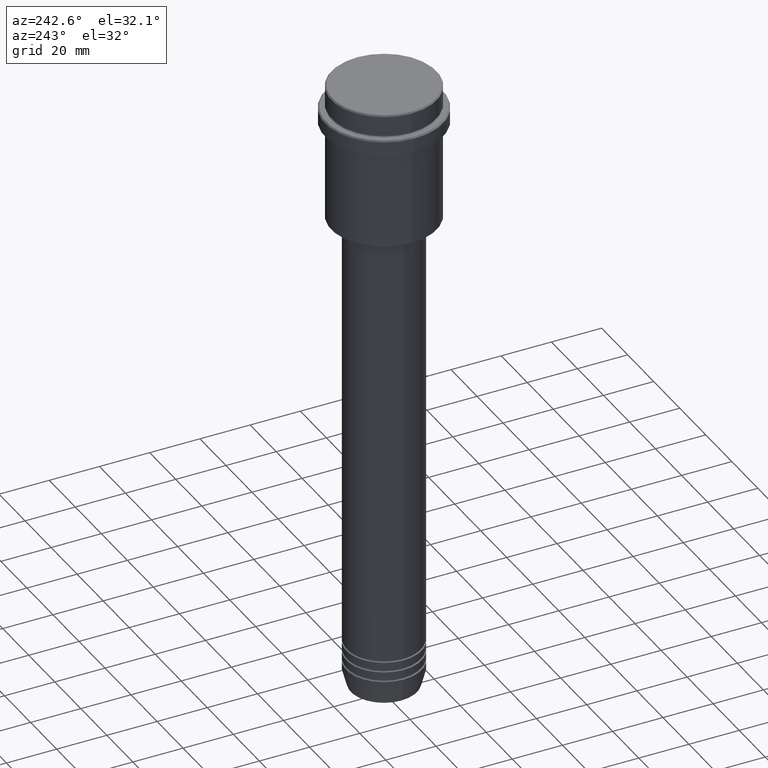
[diagram: clean part render]
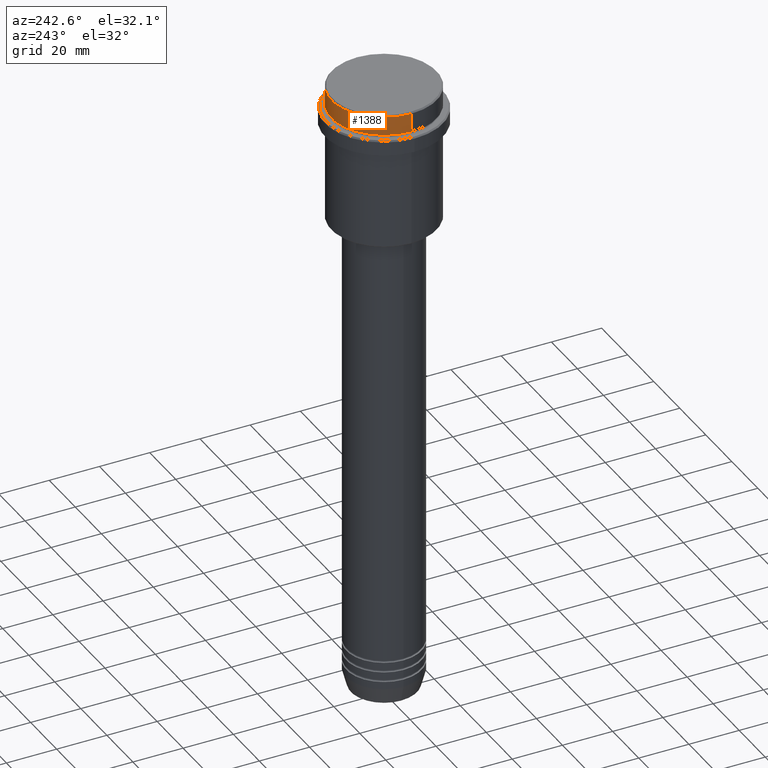
[diagram: same view with one face highlighted and labeled with its STEP entity id]
A machine part, auxiliary view. The second image highlights one B-rep face of the part: STEP entity #1388.
In plain terms, the highlighted cylindrical surface (partial cylindrical patch) has radius 21 mm, axis along (-0, -0, 1).
Its self-contained STEP definition (entity closure, byte-faithful):
#144 = AXIS2_PLACEMENT_3D ( 'NONE', #1335, #389, #822 ) ;
#245 = ORIENTED_EDGE ( 'NONE', *, *, #1320, .T. ) ;
#278 = CARTESIAN_POINT ( 'NONE',  ( 0.000000000000000000, 0.000000000000000000, 0.000000000000000000 ) ) ;
#281 = CARTESIAN_POINT ( 'NONE',  ( 20.99999999999999645, 0.000000000000000000, -7.999999999999998224 ) ) ;
#293 = CARTESIAN_POINT ( 'NONE',  ( 0.000000000000000000, 0.000000000000000000, -7.999999999999998224 ) ) ;
#307 = ORIENTED_EDGE ( 'NONE', *, *, #585, .F. ) ;
#324 = CARTESIAN_POINT ( 'NONE',  ( 20.99999999999999645, 0.000000000000000000, 0.000000000000000000 ) ) ;
#364 = EDGE_CURVE ( 'NONE', #1229, #668, #645, .T. ) ;
#366 = VERTEX_POINT ( 'NONE', #281 ) ;
#386 = FACE_OUTER_BOUND ( 'NONE', #932, .T. ) ;
#389 = DIRECTION ( 'NONE',  ( 0.000000000000000000, 0.000000000000000000, -1.000000000000000000 ) ) ;
#435 = CARTESIAN_POINT ( 'NONE',  ( 20.99999999999999645, 0.000000000000000000, -0.4999999999999518718 ) ) ;
#505 = DIRECTION ( 'NONE',  ( -0.000000000000000000, -0.000000000000000000, 1.000000000000000000 ) ) ;
#512 = VECTOR ( 'NONE', #1077, 1000.000000000000000 ) ;
#560 = ORIENTED_EDGE ( 'NONE', *, *, #987, .T. ) ;
#581 = CARTESIAN_POINT ( 'NONE',  ( -20.99999999999999645, 2.571758278209441267E-15, -7.999999999999998224 ) ) ;
#585 = EDGE_CURVE ( 'NONE', #366, #668, #984, .T. ) ;
#602 = DIRECTION ( 'NONE',  ( 1.000000000000000000, 0.000000000000000000, 0.000000000000000000 ) ) ;
#645 = CIRCLE ( 'NONE', #144, 20.99999999999999645 ) ;
#668 = VERTEX_POINT ( 'NONE', #435 ) ;
#707 = DIRECTION ( 'NONE',  ( -0.000000000000000000, -0.000000000000000000, 1.000000000000000000 ) ) ;
#754 = VERTEX_POINT ( 'NONE', #581 ) ;
#777 = CARTESIAN_POINT ( 'NONE',  ( -20.99999999999999645, 2.571758278209441267E-15, 0.000000000000000000 ) ) ;
#819 = CYLINDRICAL_SURFACE ( 'NONE', #1380, 20.99999999999999645 ) ;
#822 = DIRECTION ( 'NONE',  ( 1.000000000000000000, 0.000000000000000000, 0.000000000000000000 ) ) ;
#858 = AXIS2_PLACEMENT_3D ( 'NONE', #293, #505, #1374 ) ;
#932 = EDGE_LOOP ( 'NONE', ( #245, #560, #941, #307 ) ) ;
#941 = ORIENTED_EDGE ( 'NONE', *, *, #364, .T. ) ;
#984 = LINE ( 'NONE', #324, #1123 ) ;
#987 = EDGE_CURVE ( 'NONE', #754, #1229, #1200, .T. ) ;
#1077 = DIRECTION ( 'NONE',  ( -0.000000000000000000, -0.000000000000000000, 1.000000000000000000 ) ) ;
#1123 = VECTOR ( 'NONE', #1185, 1000.000000000000000 ) ;
#1185 = DIRECTION ( 'NONE',  ( -0.000000000000000000, -0.000000000000000000, 1.000000000000000000 ) ) ;
#1200 = LINE ( 'NONE', #777, #512 ) ;
#1229 = VERTEX_POINT ( 'NONE', #1337 ) ;
#1265 = CIRCLE ( 'NONE', #858, 20.99999999999999645 ) ;
#1320 = EDGE_CURVE ( 'NONE', #366, #754, #1265, .T. ) ;
#1335 = CARTESIAN_POINT ( 'NONE',  ( 0.000000000000000000, 0.000000000000000000, -0.4999999999999518718 ) ) ;
#1337 = CARTESIAN_POINT ( 'NONE',  ( -20.99999999999999645, 2.571758278209441267E-15, -0.4999999999999518718 ) ) ;
#1374 = DIRECTION ( 'NONE',  ( 1.000000000000000000, 0.000000000000000000, 0.000000000000000000 ) ) ;
#1380 = AXIS2_PLACEMENT_3D ( 'NONE', #278, #707, #602 ) ;
#1388 = ADVANCED_FACE ( 'NONE', ( #386 ), #819, .T. ) ;